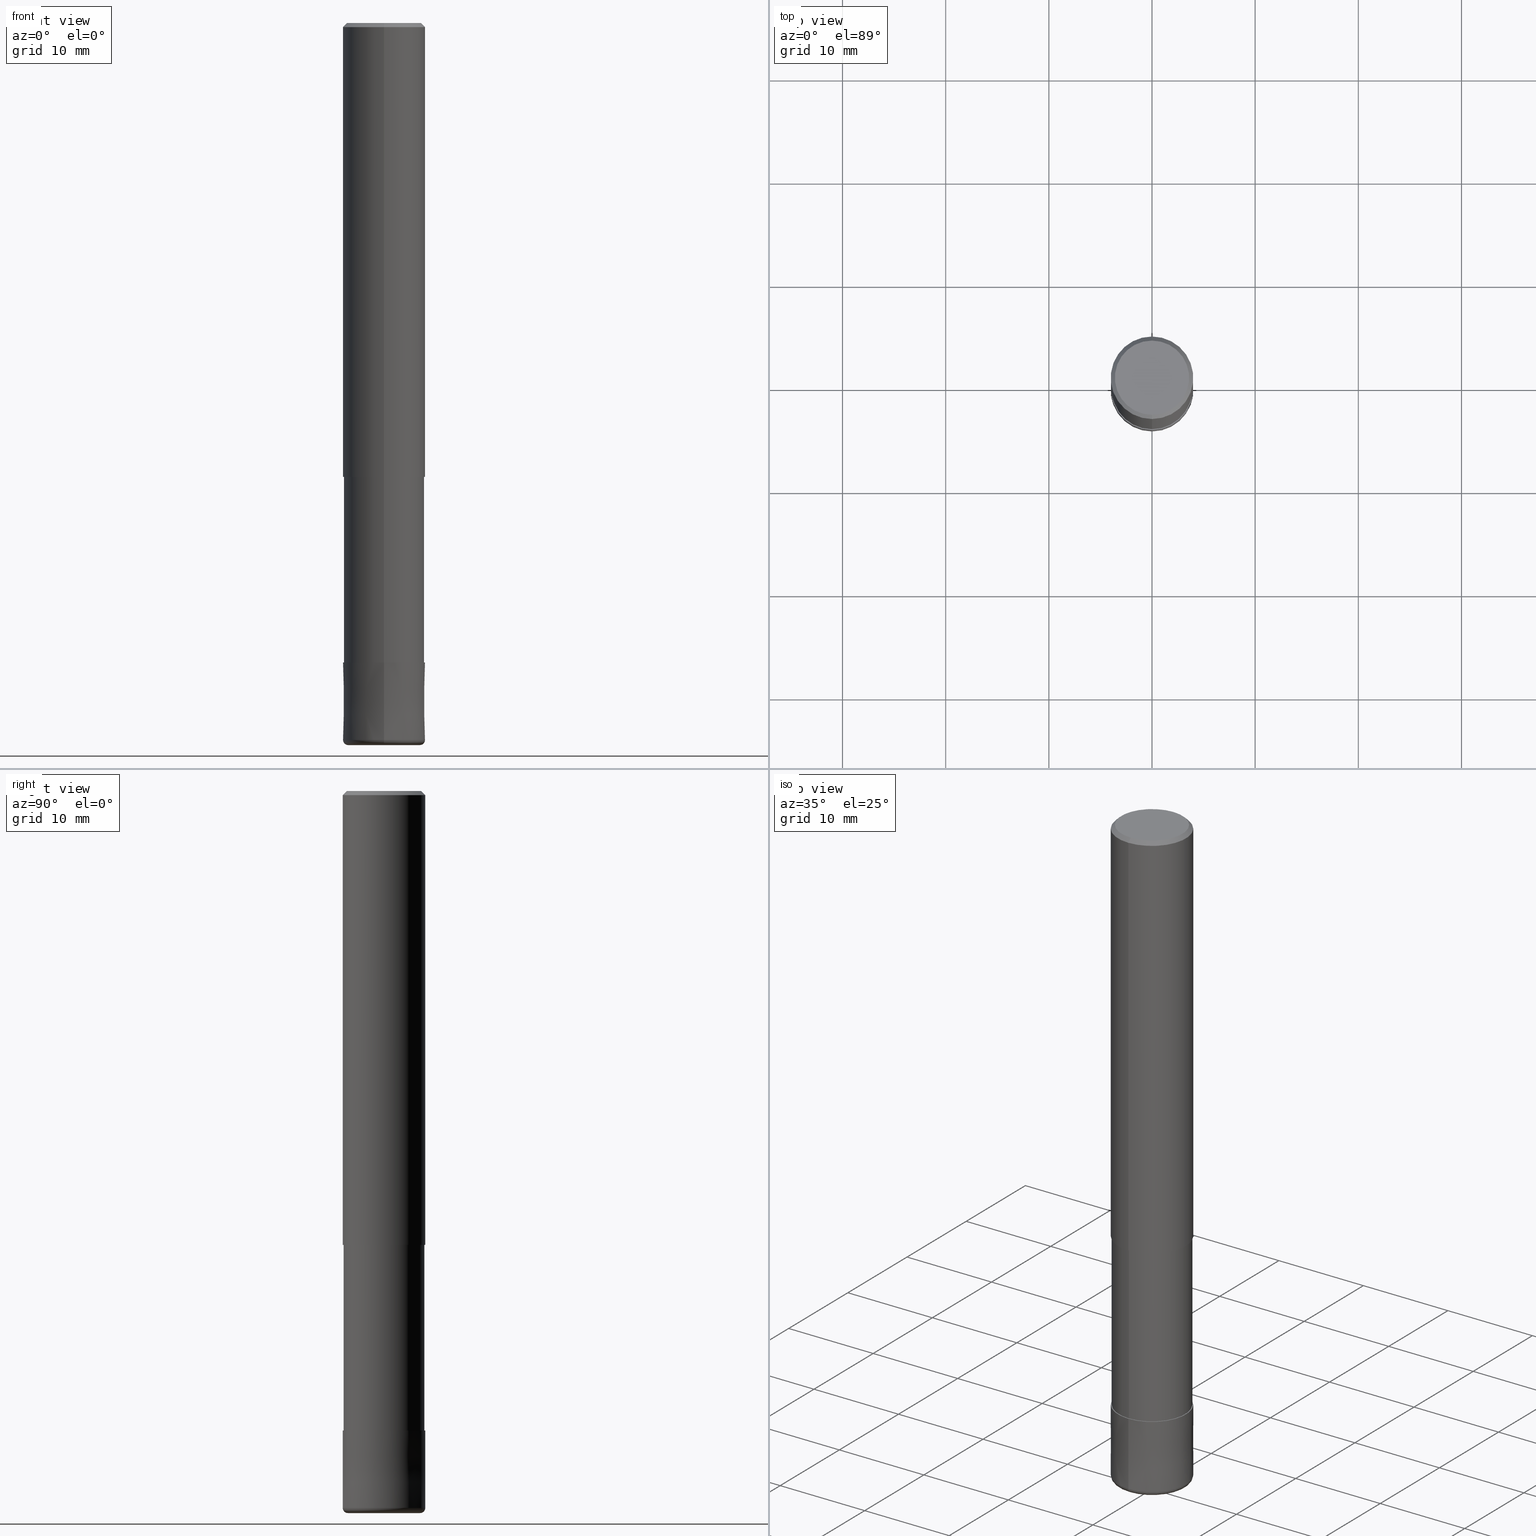
[diagram: canonical four-view strip — front | top / right | iso, engineering-drawing reading convention]
A machine part, canonical four-view strip (front | top / right | iso — engineering-drawing reading convention). The complete STEP part file that produces these views, byte-faithful:
ISO-10303-21;
HEADER;
FILE_DESCRIPTION(('no description'),'unknown implementation level');
FILE_NAME('CRRS4080-05-26-Huellk.stp','  ',('CIMSOURCE GmbH'),('CADClick - KiM GmbH - www.kimweb.de'),'unknown preprocess','ACIS','unknown authorization');
FILE_SCHEMA(('automotive_design'));
ENDSEC;
DATA;
#1=MECHANICAL_DESIGN_GEOMETRIC_PRESENTATION_REPRESENTATION(' ',(#14,#15,#16,#17,#18,#19,#20,#21,#22,#23,#24,#25,#26,#27,#28,#29,#30,#31,#32,#33,#34,#35,#36,#37,#38,#39,#40,#41,#42,#43,#44,#45,#46,#47,#48,#49,#50,#51,#52,#53,#54,#55,#56,#57,#58,#59,#60,#61,#62,#63,#64,#65,#66,#67,#68,#69,#70,#71,#72),#10);
#2=PRODUCT_DEFINITION_CONTEXT('',#73,'design');
#3=APPLICATION_PROTOCOL_DEFINITION('INTERNATIONAL STANDARD','automotive_design',1994,#73);
#4=PRODUCT_CATEGORY_RELATIONSHIP('NONE','NONE',#74,#75);
#5=SHAPE_DEFINITION_REPRESENTATION(#76,#77);
#6=PRODUCT_DEFINITION_CONTEXT('',#78,'design');
#7=APPLICATION_PROTOCOL_DEFINITION('INTERNATIONAL STANDARD','automotive_design',1994,#78);
#8=PRODUCT_CATEGORY_RELATIONSHIP('NONE','NONE',#79,#80);
#9=SHAPE_DEFINITION_REPRESENTATION(#81,#82);
#10= (GEOMETRIC_REPRESENTATION_CONTEXT(3)GLOBAL_UNCERTAINTY_ASSIGNED_CONTEXT((#85))GLOBAL_UNIT_ASSIGNED_CONTEXT((#87,#88,#89))REPRESENTATION_CONTEXT('NONE','WORKSPACE'));
#14=STYLED_ITEM('',(#91),#92);
#15=STYLED_ITEM('',(#93),#94);
#16=STYLED_ITEM('',(#95),#96);
#17=STYLED_ITEM('',(#97),#98);
#18=STYLED_ITEM('',(#99),#100);
#19=STYLED_ITEM('',(#101),#102);
#20=STYLED_ITEM('',(#103),#104);
#21=STYLED_ITEM('',(#105),#106);
#22=STYLED_ITEM('',(#107),#108);
#23=STYLED_ITEM('',(#109),#110);
#24=STYLED_ITEM('',(#111),#112);
#25=STYLED_ITEM('',(#113),#114);
#26=STYLED_ITEM('',(#115),#116);
#27=STYLED_ITEM('',(#117),#118);
#28=STYLED_ITEM('',(#119),#120);
#29=STYLED_ITEM('',(#121),#122);
#30=STYLED_ITEM('',(#123),#124);
#31=STYLED_ITEM('',(#125),#126);
#32=STYLED_ITEM('',(#127),#128);
#33=STYLED_ITEM('',(#129),#130);
#34=STYLED_ITEM('',(#131),#132);
#35=STYLED_ITEM('',(#133),#134);
#36=STYLED_ITEM('',(#135),#136);
#37=STYLED_ITEM('',(#137),#138);
#38=STYLED_ITEM('',(#139),#140);
#39=STYLED_ITEM('',(#141),#142);
#40=STYLED_ITEM('',(#143),#144);
#41=STYLED_ITEM('',(#145),#146);
#42=STYLED_ITEM('',(#147),#148);
#43=STYLED_ITEM('',(#149),#150);
#44=STYLED_ITEM('',(#151),#152);
#45=STYLED_ITEM('',(#153),#154);
#46=STYLED_ITEM('',(#155),#156);
#47=STYLED_ITEM('',(#157),#158);
#48=STYLED_ITEM('',(#159),#160);
#49=STYLED_ITEM('',(#161),#162);
#50=STYLED_ITEM('',(#163),#164);
#51=STYLED_ITEM('',(#165),#166);
#52=STYLED_ITEM('',(#167),#168);
#53=STYLED_ITEM('',(#169),#170);
#54=STYLED_ITEM('',(#171),#172);
#55=STYLED_ITEM('',(#173),#174);
#56=STYLED_ITEM('',(#175),#176);
#57=STYLED_ITEM('',(#177),#178);
#58=STYLED_ITEM('',(#179),#180);
#59=STYLED_ITEM('',(#181),#182);
#60=STYLED_ITEM('',(#183),#184);
#61=STYLED_ITEM('',(#185),#186);
#62=STYLED_ITEM('',(#187),#188);
#63=STYLED_ITEM('',(#189),#190);
#64=STYLED_ITEM('',(#191),#192);
#65=STYLED_ITEM('',(#193),#194);
#66=STYLED_ITEM('',(#195),#196);
#67=STYLED_ITEM('',(#197),#198);
#68=STYLED_ITEM('',(#199),#200);
#69=STYLED_ITEM('',(#201),#202);
#70=STYLED_ITEM('',(#203),#204);
#71=STYLED_ITEM('',(#205),#206);
#72=STYLED_ITEM('',(#207),#208);
#73=APPLICATION_CONTEXT(' ');
#74=PRODUCT_CATEGORY('part','NONE');
#75=PRODUCT_RELATED_PRODUCT_CATEGORY('detail',' ',(#209));
#76=PRODUCT_DEFINITION_SHAPE('NONE','NONE',#210);
#77=ADVANCED_BREP_SHAPE_REPRESENTATION('1',(#102,#211),#10);
#78=APPLICATION_CONTEXT(' ');
#79=PRODUCT_CATEGORY('part','NONE');
#80=PRODUCT_RELATED_PRODUCT_CATEGORY('detail',' ',(#212));
#81=PRODUCT_DEFINITION_SHAPE('NONE','NONE',#213);
#82=ADVANCED_BREP_SHAPE_REPRESENTATION('2',(#164,#214),#10);
#85=UNCERTAINTY_MEASURE_WITH_UNIT(LENGTH_MEASURE(1.0E-006),#87,'','');
#87= (CONVERSION_BASED_UNIT('MILLIMETRE',#217)LENGTH_UNIT()NAMED_UNIT(#220));
#88= (NAMED_UNIT(#222)PLANE_ANGLE_UNIT()SI_UNIT($,.RADIAN.));
#89= (NAMED_UNIT(#222)SOLID_ANGLE_UNIT()SI_UNIT($,.STERADIAN.));
#91=PRESENTATION_STYLE_ASSIGNMENT((#228));
#92=VERTEX_POINT('',#229);
#93=PRESENTATION_STYLE_ASSIGNMENT((#230));
#94=ADVANCED_FACE('',(#231),#232,.T.);
#95=PRESENTATION_STYLE_ASSIGNMENT((#233));
#96=ADVANCED_FACE('',(#234),#235,.T.);
#97=PRESENTATION_STYLE_ASSIGNMENT((#236));
#98=EDGE_CURVE('',#122,#190,#237,.T.);
#99=PRESENTATION_STYLE_ASSIGNMENT((#238));
#100=EDGE_CURVE('',#110,#194,#239,.T.);
#101=PRESENTATION_STYLE_ASSIGNMENT((#240));
#102=MANIFOLD_SOLID_BREP('1',#241);
#103=PRESENTATION_STYLE_ASSIGNMENT((#242));
#104=EDGE_CURVE('',#116,#190,#243,.T.);
#105=PRESENTATION_STYLE_ASSIGNMENT((#244));
#106=EDGE_CURVE('',#112,#132,#245,.T.);
#107=PRESENTATION_STYLE_ASSIGNMENT((#246));
#108=VERTEX_POINT('',#247);
#109=PRESENTATION_STYLE_ASSIGNMENT((#248));
#110=VERTEX_POINT('',#249);
#111=PRESENTATION_STYLE_ASSIGNMENT((#250));
#112=VERTEX_POINT('',#251);
#113=PRESENTATION_STYLE_ASSIGNMENT((#252));
#114=EDGE_CURVE('',#108,#176,#253,.T.);
#115=PRESENTATION_STYLE_ASSIGNMENT((#254));
#116=VERTEX_POINT('',#255);
#117=PRESENTATION_STYLE_ASSIGNMENT((#256));
#118=EDGE_CURVE('',#168,#148,#257,.T.);
#119=PRESENTATION_STYLE_ASSIGNMENT((#258));
#120=EDGE_CURVE('',#138,#110,#259,.T.);
#121=PRESENTATION_STYLE_ASSIGNMENT((#260));
#122=VERTEX_POINT('',#261);
#123=PRESENTATION_STYLE_ASSIGNMENT((#262));
#124=EDGE_CURVE('',#108,#166,#263,.T.);
#125=PRESENTATION_STYLE_ASSIGNMENT((#264));
#126=ADVANCED_FACE('',(#265),#266,.T.);
#127=PRESENTATION_STYLE_ASSIGNMENT((#267));
#128=ADVANCED_FACE('',(#268),#269,.T.);
#129=PRESENTATION_STYLE_ASSIGNMENT((#270));
#130=EDGE_CURVE('',#192,#176,#271,.T.);
#131=PRESENTATION_STYLE_ASSIGNMENT((#272));
#132=VERTEX_POINT('',#273);
#133=PRESENTATION_STYLE_ASSIGNMENT((#274));
#134=ADVANCED_FACE('',(#275),#276,.T.);
#135=PRESENTATION_STYLE_ASSIGNMENT((#277));
#136=ADVANCED_FACE('',(#278),#279,.T.);
#137=PRESENTATION_STYLE_ASSIGNMENT((#280));
#138=VERTEX_POINT('',#281);
#139=PRESENTATION_STYLE_ASSIGNMENT((#282));
#140=EDGE_CURVE('',#176,#108,#283,.T.);
#141=PRESENTATION_STYLE_ASSIGNMENT((#284));
#142=ADVANCED_FACE('',(#285),#286,.T.);
#143=PRESENTATION_STYLE_ASSIGNMENT((#287));
#144=EDGE_CURVE('',#204,#122,#288,.T.);
#145=PRESENTATION_STYLE_ASSIGNMENT((#289));
#146=ADVANCED_FACE('',(#290),#291,.T.);
#147=PRESENTATION_STYLE_ASSIGNMENT((#292));
#148=VERTEX_POINT('',#293);
#149=PRESENTATION_STYLE_ASSIGNMENT((#294));
#150=ADVANCED_FACE('',(#295),#296,.T.);
#151=PRESENTATION_STYLE_ASSIGNMENT((#297));
#152=EDGE_CURVE('',#122,#204,#298,.T.);
#153=PRESENTATION_STYLE_ASSIGNMENT((#299));
#154=ADVANCED_FACE('',(#300),#301,.T.);
#155=PRESENTATION_STYLE_ASSIGNMENT((#302));
#156=EDGE_CURVE('',#116,#204,#303,.T.);
#157=PRESENTATION_STYLE_ASSIGNMENT((#304));
#158=EDGE_CURVE('',#132,#112,#305,.T.);
#159=PRESENTATION_STYLE_ASSIGNMENT((#306));
#160=EDGE_CURVE('',#148,#192,#307,.T.);
#161=PRESENTATION_STYLE_ASSIGNMENT((#308));
#162=EDGE_CURVE('',#194,#110,#309,.T.);
#163=PRESENTATION_STYLE_ASSIGNMENT((#310));
#164=MANIFOLD_SOLID_BREP('2',#311);
#165=PRESENTATION_STYLE_ASSIGNMENT((#312));
#166=VERTEX_POINT('',#313);
#167=PRESENTATION_STYLE_ASSIGNMENT((#314));
#168=VERTEX_POINT('',#315);
#169=PRESENTATION_STYLE_ASSIGNMENT((#316));
#170=EDGE_CURVE('',#138,#92,#317,.T.);
#171=PRESENTATION_STYLE_ASSIGNMENT((#318));
#172=ADVANCED_FACE('',(#319),#320,.T.);
#173=PRESENTATION_STYLE_ASSIGNMENT((#321));
#174=ADVANCED_FACE('',(#322,#323),#324,.T.);
#175=PRESENTATION_STYLE_ASSIGNMENT((#325));
#176=VERTEX_POINT('',#326);
#177=PRESENTATION_STYLE_ASSIGNMENT((#327));
#178=EDGE_CURVE('',#138,#112,#328,.T.);
#179=PRESENTATION_STYLE_ASSIGNMENT((#329));
#180=EDGE_CURVE('',#166,#168,#330,.T.);
#181=PRESENTATION_STYLE_ASSIGNMENT((#331));
#182=EDGE_CURVE('',#190,#116,#332,.T.);
#183=PRESENTATION_STYLE_ASSIGNMENT((#333));
#184=ADVANCED_FACE('',(#334),#335,.T.);
#185=PRESENTATION_STYLE_ASSIGNMENT((#336));
#186=EDGE_CURVE('',#194,#92,#337,.T.);
#187=PRESENTATION_STYLE_ASSIGNMENT((#338));
#188=EDGE_CURVE('',#132,#92,#339,.T.);
#189=PRESENTATION_STYLE_ASSIGNMENT((#340));
#190=VERTEX_POINT('',#341);
#191=PRESENTATION_STYLE_ASSIGNMENT((#342));
#192=VERTEX_POINT('',#343);
#193=PRESENTATION_STYLE_ASSIGNMENT((#344));
#194=VERTEX_POINT('',#345);
#195=PRESENTATION_STYLE_ASSIGNMENT((#346));
#196=EDGE_CURVE('',#192,#166,#347,.T.);
#197=PRESENTATION_STYLE_ASSIGNMENT((#348));
#198=ADVANCED_FACE('',(#349),#350,.T.);
#199=PRESENTATION_STYLE_ASSIGNMENT((#351));
#200=ADVANCED_FACE('',(#352),#353,.T.);
#201=PRESENTATION_STYLE_ASSIGNMENT((#354));
#202=EDGE_CURVE('',#92,#138,#355,.T.);
#203=PRESENTATION_STYLE_ASSIGNMENT((#356));
#204=VERTEX_POINT('',#357);
#205=PRESENTATION_STYLE_ASSIGNMENT((#358));
#206=EDGE_CURVE('',#148,#168,#359,.T.);
#207=PRESENTATION_STYLE_ASSIGNMENT((#360));
#208=EDGE_CURVE('',#166,#192,#361,.T.);
#209=PRODUCT('1','1','PART-1-DESC',(#362));
#210=PRODUCT_DEFINITION('NONE','NONE',#363,#2);
#211=AXIS2_PLACEMENT_3D('',#364,#365,#366);
#212=PRODUCT('2','2','PART-2-DESC',(#367));
#213=PRODUCT_DEFINITION('NONE','NONE',#368,#6);
#214=AXIS2_PLACEMENT_3D('',#369,#370,#371);
#217=LENGTH_MEASURE_WITH_UNIT(LENGTH_MEASURE(1.0),#372);
#220=DIMENSIONAL_EXPONENTS(1.0,0.0,0.0,0.0,0.0,0.0,0.0);
#222=DIMENSIONAL_EXPONENTS(0.0,0.0,0.0,0.0,0.0,0.0,0.0);
#228=POINT_STYLE(' ',#373,POSITIVE_LENGTH_MEASURE(1.0E-006),#374);
#229=CARTESIAN_POINT('',(0.0,4.0,-69.5));
#230=SURFACE_STYLE_USAGE(.BOTH.,#375);
#231=FACE_OUTER_BOUND('',#376,.T.);
#232=CYLINDRICAL_SURFACE('',#377,4.0);
#233=SURFACE_STYLE_USAGE(.BOTH.,#378);
#234=FACE_OUTER_BOUND('',#379,.T.);
#235=CONICAL_SURFACE('',#380,3.8,0.78539816339745);
#236=CURVE_STYLE('',#381,POSITIVE_LENGTH_MEASURE(1.0E-006),#382);
#237=LINE('',#383,#384);
#238=CURVE_STYLE('',#385,POSITIVE_LENGTH_MEASURE(1.0E-006),#386);
#239=CIRCLE('',#387,3.9999);
#240=SURFACE_STYLE_USAGE(.BOTH.,#388);
#241=CLOSED_SHELL('',(#172,#94,#142,#174,#200,#96,#154,#184,#126));
#242=CURVE_STYLE('',#389,POSITIVE_LENGTH_MEASURE(1.0E-006),#390);
#243=CIRCLE('',#391,3.90995);
#244=CURVE_STYLE('',#392,POSITIVE_LENGTH_MEASURE(1.0E-006),#393);
#245=CIRCLE('',#394,3.5);
#246=POINT_STYLE(' ',#395,POSITIVE_LENGTH_MEASURE(1.0E-006),#396);
#247=CARTESIAN_POINT('',(4.89842541528951E-016,-4.0,-44.0));
#248=POINT_STYLE(' ',#397,POSITIVE_LENGTH_MEASURE(1.0E-006),#398);
#249=CARTESIAN_POINT('',(4.89830295465413E-016,-3.9999,-62.0));
#250=POINT_STYLE(' ',#399,POSITIVE_LENGTH_MEASURE(1.0E-006),#400);
#251=CARTESIAN_POINT('',(4.28612223837832E-016,-3.5,-70.0));
#252=CURVE_STYLE('',#401,POSITIVE_LENGTH_MEASURE(1.0E-006),#402);
#253=CIRCLE('',#403,4.0);
#254=POINT_STYLE(' ',#404,POSITIVE_LENGTH_MEASURE(1.0E-006),#405);
#255=CARTESIAN_POINT('',(0.0,3.90995,-44.0));
#256=CURVE_STYLE('',#406,POSITIVE_LENGTH_MEASURE(1.0E-006),#407);
#257=CIRCLE('',#408,3.6);
#258=CURVE_STYLE('',#409,POSITIVE_LENGTH_MEASURE(1.0E-006),#410);
#259=LINE('',#411,#412);
#260=POINT_STYLE(' ',#413,POSITIVE_LENGTH_MEASURE(1.0E-006),#414);
#261=CARTESIAN_POINT('',(4.7881496131278E-016,-3.90995,-62.0));
#262=CURVE_STYLE('',#415,POSITIVE_LENGTH_MEASURE(1.0E-006),#416);
#263=LINE('',#417,#418);
#264=SURFACE_STYLE_USAGE(.BOTH.,#419);
#265=FACE_OUTER_BOUND('',#420,.T.);
#266=PLANE('',#421);
#267=SURFACE_STYLE_USAGE(.BOTH.,#422);
#268=FACE_OUTER_BOUND('',#423,.T.);
#269=CONICAL_SURFACE('',#424,3.99995,1.33333333325713E-005);
#270=CURVE_STYLE('',#425,POSITIVE_LENGTH_MEASURE(1.0E-006),#426);
#271=LINE('',#427,#428);
#272=POINT_STYLE(' ',#429,POSITIVE_LENGTH_MEASURE(1.0E-006),#430);
#273=CARTESIAN_POINT('',(0.0,3.5,-70.0));
#274=SURFACE_STYLE_USAGE(.BOTH.,#431);
#275=FACE_OUTER_BOUND('',#432,.T.);
#276=PLANE('',#433);
#277=SURFACE_STYLE_USAGE(.BOTH.,#434);
#278=FACE_OUTER_BOUND('',#435,.T.);
#279=CONICAL_SURFACE('',#436,3.99995,1.33333333325713E-005);
#280=POINT_STYLE(' ',#437,POSITIVE_LENGTH_MEASURE(1.0E-006),#438);
#281=CARTESIAN_POINT('',(4.89842541528951E-016,-4.0,-69.5));
#282=CURVE_STYLE('',#439,POSITIVE_LENGTH_MEASURE(1.0E-006),#440);
#283=CIRCLE('',#441,4.0);
#284=SURFACE_STYLE_USAGE(.BOTH.,#442);
#285=FACE_OUTER_BOUND('',#443,.T.);
#286=CONICAL_SURFACE('',#444,3.8,0.78539816339745);
#287=CURVE_STYLE('',#445,POSITIVE_LENGTH_MEASURE(1.0E-006),#446);
#288=CIRCLE('',#447,3.90995);
#289=SURFACE_STYLE_USAGE(.BOTH.,#448);
#290=FACE_OUTER_BOUND('',#449,.T.);
#291=TOROIDAL_SURFACE('',#450,3.5,0.500000000000001);
#292=POINT_STYLE(' ',#451,POSITIVE_LENGTH_MEASURE(1.0E-006),#452);
#293=CARTESIAN_POINT('',(0.0,3.6,0.0));
#294=SURFACE_STYLE_USAGE(.BOTH.,#453);
#295=FACE_OUTER_BOUND('',#454,.T.);
#296=PLANE('',#455);
#297=CURVE_STYLE('',#456,POSITIVE_LENGTH_MEASURE(1.0E-006),#457);
#298=CIRCLE('',#458,3.90995);
#299=SURFACE_STYLE_USAGE(.BOTH.,#459);
#300=FACE_OUTER_BOUND('',#460,.T.);
#301=CYLINDRICAL_SURFACE('',#461,4.0);
#302=CURVE_STYLE('',#462,POSITIVE_LENGTH_MEASURE(1.0E-006),#463);
#303=LINE('',#464,#465);
#304=CURVE_STYLE('',#466,POSITIVE_LENGTH_MEASURE(1.0E-006),#467);
#305=CIRCLE('',#468,3.5);
#306=CURVE_STYLE('',#469,POSITIVE_LENGTH_MEASURE(1.0E-006),#470);
#307=LINE('',#471,#472);
#308=CURVE_STYLE('',#473,POSITIVE_LENGTH_MEASURE(1.0E-006),#474);
#309=CIRCLE('',#475,3.9999);
#310=SURFACE_STYLE_USAGE(.BOTH.,#476);
#311=CLOSED_SHELL('',(#198,#128,#150,#136,#146,#134));
#312=POINT_STYLE(' ',#477,POSITIVE_LENGTH_MEASURE(1.0E-006),#478);
#313=CARTESIAN_POINT('',(4.89842541528951E-016,-4.0,-0.399999999999999));
#314=POINT_STYLE(' ',#479,POSITIVE_LENGTH_MEASURE(1.0E-006),#480);
#315=CARTESIAN_POINT('',(4.40858287376056E-016,-3.6,0.0));
#316=CURVE_STYLE('',#481,POSITIVE_LENGTH_MEASURE(1.0E-006),#482);
#317=CIRCLE('',#483,4.0);
#318=SURFACE_STYLE_USAGE(.BOTH.,#484);
#319=FACE_OUTER_BOUND('',#485,.T.);
#320=CYLINDRICAL_SURFACE('',#486,3.90995);
#321=SURFACE_STYLE_USAGE(.BOTH.,#487);
#322=FACE_OUTER_BOUND('',#488,.T.);
#323=FACE_BOUND('',#489,.T.);
#324=PLANE('',#490);
#325=POINT_STYLE(' ',#491,POSITIVE_LENGTH_MEASURE(1.0E-006),#492);
#326=CARTESIAN_POINT('',(0.0,4.0,-44.0));
#327=CURVE_STYLE('',#493,POSITIVE_LENGTH_MEASURE(1.0E-006),#494);
#328=CIRCLE('',#495,0.500000000000001);
#329=CURVE_STYLE('',#496,POSITIVE_LENGTH_MEASURE(1.0E-006),#497);
#330=LINE('',#498,#499);
#331=CURVE_STYLE('',#500,POSITIVE_LENGTH_MEASURE(1.0E-006),#501);
#332=CIRCLE('',#502,3.90995);
#333=SURFACE_STYLE_USAGE(.BOTH.,#503);
#334=FACE_OUTER_BOUND('',#504,.T.);
#335=CYLINDRICAL_SURFACE('',#505,3.90995);
#336=CURVE_STYLE('',#506,POSITIVE_LENGTH_MEASURE(1.0E-006),#507);
#337=LINE('',#508,#509);
#338=CURVE_STYLE('',#510,POSITIVE_LENGTH_MEASURE(1.0E-006),#511);
#339=CIRCLE('',#512,0.500000000000001);
#340=POINT_STYLE(' ',#513,POSITIVE_LENGTH_MEASURE(1.0E-006),#514);
#341=CARTESIAN_POINT('',(4.7881496131278E-016,-3.90995,-44.0));
#342=POINT_STYLE(' ',#515,POSITIVE_LENGTH_MEASURE(1.0E-006),#516);
#343=CARTESIAN_POINT('',(0.0,4.0,-0.399999999999999));
#344=POINT_STYLE(' ',#517,POSITIVE_LENGTH_MEASURE(1.0E-006),#518);
#345=CARTESIAN_POINT('',(0.0,3.9999,-62.0));
#346=CURVE_STYLE('',#519,POSITIVE_LENGTH_MEASURE(1.0E-006),#520);
#347=CIRCLE('',#521,4.0);
#348=SURFACE_STYLE_USAGE(.BOTH.,#522);
#349=FACE_OUTER_BOUND('',#523,.T.);
#350=TOROIDAL_SURFACE('',#524,3.5,0.500000000000001);
#351=SURFACE_STYLE_USAGE(.BOTH.,#525);
#352=FACE_OUTER_BOUND('',#526,.T.);
#353=PLANE('',#527);
#354=CURVE_STYLE('',#528,POSITIVE_LENGTH_MEASURE(1.0E-006),#529);
#355=CIRCLE('',#530,4.0);
#356=POINT_STYLE(' ',#531,POSITIVE_LENGTH_MEASURE(1.0E-006),#532);
#357=CARTESIAN_POINT('',(0.0,3.90995,-62.0));
#358=CURVE_STYLE('',#533,POSITIVE_LENGTH_MEASURE(1.0E-006),#534);
#359=CIRCLE('',#535,3.6);
#360=CURVE_STYLE('',#536,POSITIVE_LENGTH_MEASURE(1.0E-006),#537);
#361=CIRCLE('',#538,4.0);
#362=PRODUCT_CONTEXT('',#73,'mechanical');
#363=PRODUCT_DEFINITION_FORMATION_WITH_SPECIFIED_SOURCE(' ','NONE',#209,.NOT_KNOWN.);
#364=CARTESIAN_POINT('',(0.0,0.0,0.0));
#365=DIRECTION('',(0.0,0.0,1.0));
#366=DIRECTION('',(1.0,0.0,0.0));
#367=PRODUCT_CONTEXT('',#78,'mechanical');
#368=PRODUCT_DEFINITION_FORMATION_WITH_SPECIFIED_SOURCE(' ','NONE',#212,.NOT_KNOWN.);
#369=CARTESIAN_POINT('',(0.0,0.0,0.0));
#370=DIRECTION('',(0.0,0.0,1.0));
#371=DIRECTION('',(1.0,0.0,0.0));
#372= (NAMED_UNIT(#220)LENGTH_UNIT()SI_UNIT(.MILLI.,.METRE.));
#373=PRE_DEFINED_MARKER('');
#374=COLOUR_RGB('',0.800000011920929,0.800000011920929,0.800000011920929);
#375=SURFACE_SIDE_STYLE('',(#540));
#376=EDGE_LOOP('',(#541,#542,#543,#544));
#377=AXIS2_PLACEMENT_3D('',#545,#546,#547);
#378=SURFACE_SIDE_STYLE('',(#548));
#379=EDGE_LOOP('',(#549,#550,#551,#552));
#380=AXIS2_PLACEMENT_3D('',#553,#554,#555);
#381=DRAUGHTING_PRE_DEFINED_CURVE_FONT('continuous');
#382=COLOUR_RGB('',0.498039215803146,0.498039215803146,0.498039215803146);
#383=CARTESIAN_POINT('',(4.7881496131278E-016,-3.90995,-53.0));
#384=VECTOR('',#556,1.0);
#385=DRAUGHTING_PRE_DEFINED_CURVE_FONT('continuous');
#386=COLOUR_RGB('',0.800000011920929,0.800000011920929,0.800000011920929);
#387=AXIS2_PLACEMENT_3D('',#557,#558,#559);
#388=SURFACE_SIDE_STYLE('',(#560));
#389=DRAUGHTING_PRE_DEFINED_CURVE_FONT('continuous');
#390=COLOUR_RGB('',0.498039215803146,0.498039215803146,0.498039215803146);
#391=AXIS2_PLACEMENT_3D('',#561,#562,#563);
#392=DRAUGHTING_PRE_DEFINED_CURVE_FONT('continuous');
#393=COLOUR_RGB('',0.800000011920929,0.800000011920929,0.800000011920929);
#394=AXIS2_PLACEMENT_3D('',#564,#565,#566);
#395=PRE_DEFINED_MARKER('');
#396=COLOUR_RGB('',0.498039215803146,0.498039215803146,0.498039215803146);
#397=PRE_DEFINED_MARKER('');
#398=COLOUR_RGB('',0.800000011920929,0.800000011920929,0.800000011920929);
#399=PRE_DEFINED_MARKER('');
#400=COLOUR_RGB('',0.800000011920929,0.800000011920929,0.800000011920929);
#401=DRAUGHTING_PRE_DEFINED_CURVE_FONT('continuous');
#402=COLOUR_RGB('',0.498039215803146,0.498039215803146,0.498039215803146);
#403=AXIS2_PLACEMENT_3D('',#567,#568,#569);
#404=PRE_DEFINED_MARKER('');
#405=COLOUR_RGB('',0.498039215803146,0.498039215803146,0.498039215803146);
#406=DRAUGHTING_PRE_DEFINED_CURVE_FONT('continuous');
#407=COLOUR_RGB('',0.498039215803146,0.498039215803146,0.498039215803146);
#408=AXIS2_PLACEMENT_3D('',#570,#571,#572);
#409=DRAUGHTING_PRE_DEFINED_CURVE_FONT('continuous');
#410=COLOUR_RGB('',0.800000011920929,0.800000011920929,0.800000011920929);
#411=CARTESIAN_POINT('',(4.89836418497182E-016,-3.99995,-65.75));
#412=VECTOR('',#573,1.0);
#413=PRE_DEFINED_MARKER('');
#414=COLOUR_RGB('',0.498039215803146,0.498039215803146,0.498039215803146);
#415=DRAUGHTING_PRE_DEFINED_CURVE_FONT('continuous');
#416=COLOUR_RGB('',0.498039215803146,0.498039215803146,0.498039215803146);
#417=CARTESIAN_POINT('',(4.89842541528951E-016,-4.0,-22.2));
#418=VECTOR('',#574,1.0);
#419=SURFACE_SIDE_STYLE('',(#575));
#420=EDGE_LOOP('',(#576,#577));
#421=AXIS2_PLACEMENT_3D('',#578,#579,#580);
#422=SURFACE_SIDE_STYLE('',(#581));
#423=EDGE_LOOP('',(#582,#583,#584,#585));
#424=AXIS2_PLACEMENT_3D('',#586,#587,#588);
#425=DRAUGHTING_PRE_DEFINED_CURVE_FONT('continuous');
#426=COLOUR_RGB('',0.498039215803146,0.498039215803146,0.498039215803146);
#427=CARTESIAN_POINT('',(-4.89842541528951E-016,4.0,-22.2));
#428=VECTOR('',#589,1.0);
#429=PRE_DEFINED_MARKER('');
#430=COLOUR_RGB('',0.800000011920929,0.800000011920929,0.800000011920929);
#431=SURFACE_SIDE_STYLE('',(#590));
#432=EDGE_LOOP('',(#591,#592));
#433=AXIS2_PLACEMENT_3D('',#593,#594,#595);
#434=SURFACE_SIDE_STYLE('',(#596));
#435=EDGE_LOOP('',(#597,#598,#599,#600));
#436=AXIS2_PLACEMENT_3D('',#601,#602,#603);
#437=PRE_DEFINED_MARKER('');
#438=COLOUR_RGB('',0.800000011920929,0.800000011920929,0.800000011920929);
#439=DRAUGHTING_PRE_DEFINED_CURVE_FONT('continuous');
#440=COLOUR_RGB('',0.498039215803146,0.498039215803146,0.498039215803146);
#441=AXIS2_PLACEMENT_3D('',#604,#605,#606);
#442=SURFACE_SIDE_STYLE('',(#607));
#443=EDGE_LOOP('',(#608,#609,#610,#611));
#444=AXIS2_PLACEMENT_3D('',#612,#613,#614);
#445=DRAUGHTING_PRE_DEFINED_CURVE_FONT('continuous');
#446=COLOUR_RGB('',0.498039215803146,0.498039215803146,0.498039215803146);
#447=AXIS2_PLACEMENT_3D('',#615,#616,#617);
#448=SURFACE_SIDE_STYLE('',(#618));
#449=EDGE_LOOP('',(#619,#620,#621,#622));
#450=AXIS2_PLACEMENT_3D('',#623,#624,#625);
#451=PRE_DEFINED_MARKER('');
#452=COLOUR_RGB('',0.498039215803146,0.498039215803146,0.498039215803146);
#453=SURFACE_SIDE_STYLE('',(#626));
#454=EDGE_LOOP('',(#627,#628));
#455=AXIS2_PLACEMENT_3D('',#629,#630,#631);
#456=DRAUGHTING_PRE_DEFINED_CURVE_FONT('continuous');
#457=COLOUR_RGB('',0.498039215803146,0.498039215803146,0.498039215803146);
#458=AXIS2_PLACEMENT_3D('',#632,#633,#634);
#459=SURFACE_SIDE_STYLE('',(#635));
#460=EDGE_LOOP('',(#636,#637,#638,#639));
#461=AXIS2_PLACEMENT_3D('',#640,#641,#642);
#462=DRAUGHTING_PRE_DEFINED_CURVE_FONT('continuous');
#463=COLOUR_RGB('',0.498039215803146,0.498039215803146,0.498039215803146);
#464=CARTESIAN_POINT('',(-4.7881496131278E-016,3.90995,-53.0));
#465=VECTOR('',#643,1.0);
#466=DRAUGHTING_PRE_DEFINED_CURVE_FONT('continuous');
#467=COLOUR_RGB('',0.800000011920929,0.800000011920929,0.800000011920929);
#468=AXIS2_PLACEMENT_3D('',#644,#645,#646);
#469=DRAUGHTING_PRE_DEFINED_CURVE_FONT('continuous');
#470=COLOUR_RGB('',0.498039215803146,0.498039215803146,0.498039215803146);
#471=CARTESIAN_POINT('',(-4.65350414452503E-016,3.8,-0.200000000000003));
#472=VECTOR('',#647,1.0);
#473=DRAUGHTING_PRE_DEFINED_CURVE_FONT('continuous');
#474=COLOUR_RGB('',0.800000011920929,0.800000011920929,0.800000011920929);
#475=AXIS2_PLACEMENT_3D('',#648,#649,#650);
#476=SURFACE_SIDE_STYLE('',(#651));
#477=PRE_DEFINED_MARKER('');
#478=COLOUR_RGB('',0.498039215803146,0.498039215803146,0.498039215803146);
#479=PRE_DEFINED_MARKER('');
#480=COLOUR_RGB('',0.498039215803146,0.498039215803146,0.498039215803146);
#481=DRAUGHTING_PRE_DEFINED_CURVE_FONT('continuous');
#482=COLOUR_RGB('',0.800000011920929,0.800000011920929,0.800000011920929);
#483=AXIS2_PLACEMENT_3D('',#652,#653,#654);
#484=SURFACE_SIDE_STYLE('',(#655));
#485=EDGE_LOOP('',(#656,#657,#658,#659));
#486=AXIS2_PLACEMENT_3D('',#660,#661,#662);
#487=SURFACE_SIDE_STYLE('',(#663));
#488=EDGE_LOOP('',(#664,#665));
#489=EDGE_LOOP('',(#666,#667));
#490=AXIS2_PLACEMENT_3D('',#668,#669,#670);
#491=PRE_DEFINED_MARKER('');
#492=COLOUR_RGB('',0.498039215803146,0.498039215803146,0.498039215803146);
#493=DRAUGHTING_PRE_DEFINED_CURVE_FONT('continuous');
#494=COLOUR_RGB('',0.800000011920929,0.800000011920929,0.800000011920929);
#495=AXIS2_PLACEMENT_3D('',#671,#672,#673);
#496=DRAUGHTING_PRE_DEFINED_CURVE_FONT('continuous');
#497=COLOUR_RGB('',0.498039215803146,0.498039215803146,0.498039215803146);
#498=CARTESIAN_POINT('',(4.65350414452503E-016,-3.8,-0.200000000000003));
#499=VECTOR('',#674,1.0);
#500=DRAUGHTING_PRE_DEFINED_CURVE_FONT('continuous');
#501=COLOUR_RGB('',0.498039215803146,0.498039215803146,0.498039215803146);
#502=AXIS2_PLACEMENT_3D('',#675,#676,#677);
#503=SURFACE_SIDE_STYLE('',(#678));
#504=EDGE_LOOP('',(#679,#680,#681,#682));
#505=AXIS2_PLACEMENT_3D('',#683,#684,#685);
#506=DRAUGHTING_PRE_DEFINED_CURVE_FONT('continuous');
#507=COLOUR_RGB('',0.800000011920929,0.800000011920929,0.800000011920929);
#508=CARTESIAN_POINT('',(-4.89836418497182E-016,3.99995,-65.75));
#509=VECTOR('',#686,1.0);
#510=DRAUGHTING_PRE_DEFINED_CURVE_FONT('continuous');
#511=COLOUR_RGB('',0.800000011920929,0.800000011920929,0.800000011920929);
#512=AXIS2_PLACEMENT_3D('',#687,#688,#689);
#513=PRE_DEFINED_MARKER('');
#514=COLOUR_RGB('',0.498039215803146,0.498039215803146,0.498039215803146);
#515=PRE_DEFINED_MARKER('');
#516=COLOUR_RGB('',0.498039215803146,0.498039215803146,0.498039215803146);
#517=PRE_DEFINED_MARKER('');
#518=COLOUR_RGB('',0.800000011920929,0.800000011920929,0.800000011920929);
#519=DRAUGHTING_PRE_DEFINED_CURVE_FONT('continuous');
#520=COLOUR_RGB('',0.498039215803146,0.498039215803146,0.498039215803146);
#521=AXIS2_PLACEMENT_3D('',#690,#691,#692);
#522=SURFACE_SIDE_STYLE('',(#693));
#523=EDGE_LOOP('',(#694,#695,#696,#697));
#524=AXIS2_PLACEMENT_3D('',#698,#699,#700);
#525=SURFACE_SIDE_STYLE('',(#701));
#526=EDGE_LOOP('',(#702,#703));
#527=AXIS2_PLACEMENT_3D('',#704,#705,#706);
#528=DRAUGHTING_PRE_DEFINED_CURVE_FONT('continuous');
#529=COLOUR_RGB('',0.800000011920929,0.800000011920929,0.800000011920929);
#530=AXIS2_PLACEMENT_3D('',#707,#708,#709);
#531=PRE_DEFINED_MARKER('');
#532=COLOUR_RGB('',0.498039215803146,0.498039215803146,0.498039215803146);
#533=DRAUGHTING_PRE_DEFINED_CURVE_FONT('continuous');
#534=COLOUR_RGB('',0.498039215803146,0.498039215803146,0.498039215803146);
#535=AXIS2_PLACEMENT_3D('',#710,#711,#712);
#536=DRAUGHTING_PRE_DEFINED_CURVE_FONT('continuous');
#537=COLOUR_RGB('',0.498039215803146,0.498039215803146,0.498039215803146);
#538=AXIS2_PLACEMENT_3D('',#713,#714,#715);
#540=SURFACE_STYLE_FILL_AREA(#716);
#541=ORIENTED_EDGE('',*,*,#130,.F.);
#542=ORIENTED_EDGE('',*,*,#196,.T.);
#543=ORIENTED_EDGE('',*,*,#124,.F.);
#544=ORIENTED_EDGE('',*,*,#140,.F.);
#545=CARTESIAN_POINT('',(0.0,0.0,-22.2));
#546=DIRECTION('',(-0.0,-0.0,1.0));
#547=DIRECTION('',(0.0,1.0,0.0));
#548=SURFACE_STYLE_FILL_AREA(#717);
#549=ORIENTED_EDGE('',*,*,#160,.T.);
#550=ORIENTED_EDGE('',*,*,#208,.F.);
#551=ORIENTED_EDGE('',*,*,#180,.T.);
#552=ORIENTED_EDGE('',*,*,#118,.T.);
#553=CARTESIAN_POINT('',(0.0,0.0,-0.200000000000003));
#554=DIRECTION('',(0.0,-0.0,-1.0));
#555=DIRECTION('',(0.0,1.0,0.0));
#556=DIRECTION('',(-0.0,-0.0,1.0));
#557=CARTESIAN_POINT('',(0.0,0.0,-62.0));
#558=DIRECTION('',(0.0,0.0,-1.0));
#559=DIRECTION('',(0.0,1.0,0.0));
#560=SURFACE_STYLE_FILL_AREA(#718);
#561=CARTESIAN_POINT('',(0.0,0.0,-44.0));
#562=DIRECTION('',(0.0,0.0,-1.0));
#563=DIRECTION('',(0.0,1.0,0.0));
#564=CARTESIAN_POINT('',(0.0,0.0,-70.0));
#565=DIRECTION('',(0.0,0.0,-1.0));
#566=DIRECTION('',(0.0,1.0,0.0));
#567=CARTESIAN_POINT('',(0.0,0.0,-44.0));
#568=DIRECTION('',(0.0,0.0,-1.0));
#569=DIRECTION('',(0.0,1.0,0.0));
#570=CARTESIAN_POINT('',(0.0,0.0,0.0));
#571=DIRECTION('',(0.0,0.0,-1.0));
#572=DIRECTION('',(0.0,1.0,0.0));
#573=DIRECTION('',(-1.63280847162148E-021,1.33333333321763E-005,0.999999999911111));
#574=DIRECTION('',(-0.0,-0.0,1.0));
#575=SURFACE_STYLE_FILL_AREA(#719);
#576=ORIENTED_EDGE('',*,*,#144,.T.);
#577=ORIENTED_EDGE('',*,*,#152,.T.);
#578=CARTESIAN_POINT('',(0.0,1.954975,-62.0));
#579=DIRECTION('',(0.0,0.0,-1.0));
#580=DIRECTION('',(0.0,1.0,0.0));
#581=SURFACE_STYLE_FILL_AREA(#720);
#582=ORIENTED_EDGE('',*,*,#186,.F.);
#583=ORIENTED_EDGE('',*,*,#162,.T.);
#584=ORIENTED_EDGE('',*,*,#120,.F.);
#585=ORIENTED_EDGE('',*,*,#202,.F.);
#586=CARTESIAN_POINT('',(0.0,0.0,-65.75));
#587=DIRECTION('',(0.0,-0.0,-1.0));
#588=DIRECTION('',(0.0,1.0,0.0));
#589=DIRECTION('',(0.0,0.0,-1.0));
#590=SURFACE_STYLE_FILL_AREA(#721);
#591=ORIENTED_EDGE('',*,*,#158,.T.);
#592=ORIENTED_EDGE('',*,*,#106,.T.);
#593=CARTESIAN_POINT('',(0.0,1.75,-70.0));
#594=DIRECTION('',(0.0,0.0,-1.0));
#595=DIRECTION('',(0.0,1.0,0.0));
#596=SURFACE_STYLE_FILL_AREA(#722);
#597=ORIENTED_EDGE('',*,*,#186,.T.);
#598=ORIENTED_EDGE('',*,*,#170,.F.);
#599=ORIENTED_EDGE('',*,*,#120,.T.);
#600=ORIENTED_EDGE('',*,*,#100,.T.);
#601=CARTESIAN_POINT('',(0.0,0.0,-65.75));
#602=DIRECTION('',(0.0,-0.0,-1.0));
#603=DIRECTION('',(0.0,1.0,0.0));
#604=CARTESIAN_POINT('',(0.0,0.0,-44.0));
#605=DIRECTION('',(0.0,0.0,-1.0));
#606=DIRECTION('',(0.0,1.0,0.0));
#607=SURFACE_STYLE_FILL_AREA(#723);
#608=ORIENTED_EDGE('',*,*,#160,.F.);
#609=ORIENTED_EDGE('',*,*,#206,.T.);
#610=ORIENTED_EDGE('',*,*,#180,.F.);
#611=ORIENTED_EDGE('',*,*,#196,.F.);
#612=CARTESIAN_POINT('',(0.0,0.0,-0.200000000000003));
#613=DIRECTION('',(0.0,-0.0,-1.0));
#614=DIRECTION('',(0.0,1.0,0.0));
#615=CARTESIAN_POINT('',(0.0,0.0,-62.0));
#616=DIRECTION('',(0.0,0.0,-1.0));
#617=DIRECTION('',(0.0,1.0,0.0));
#618=SURFACE_STYLE_FILL_AREA(#724);
#619=ORIENTED_EDGE('',*,*,#178,.T.);
#620=ORIENTED_EDGE('',*,*,#158,.F.);
#621=ORIENTED_EDGE('',*,*,#188,.T.);
#622=ORIENTED_EDGE('',*,*,#202,.T.);
#623=CARTESIAN_POINT('',(0.0,0.0,-69.5));
#624=DIRECTION('',(0.0,0.0,-1.0));
#625=DIRECTION('',(0.0,-1.0,0.0));
#626=SURFACE_STYLE_FILL_AREA(#725);
#627=ORIENTED_EDGE('',*,*,#162,.F.);
#628=ORIENTED_EDGE('',*,*,#100,.F.);
#629=CARTESIAN_POINT('',(0.0,1.99995,-62.0));
#630=DIRECTION('',(-0.0,0.0,1.0));
#631=DIRECTION('',(0.0,-1.0,0.0));
#632=CARTESIAN_POINT('',(0.0,0.0,-62.0));
#633=DIRECTION('',(0.0,0.0,-1.0));
#634=DIRECTION('',(0.0,1.0,0.0));
#635=SURFACE_STYLE_FILL_AREA(#726);
#636=ORIENTED_EDGE('',*,*,#130,.T.);
#637=ORIENTED_EDGE('',*,*,#114,.F.);
#638=ORIENTED_EDGE('',*,*,#124,.T.);
#639=ORIENTED_EDGE('',*,*,#208,.T.);
#640=CARTESIAN_POINT('',(0.0,0.0,-22.2));
#641=DIRECTION('',(-0.0,-0.0,1.0));
#642=DIRECTION('',(0.0,1.0,0.0));
#643=DIRECTION('',(0.0,0.0,-1.0));
#644=CARTESIAN_POINT('',(0.0,0.0,-70.0));
#645=DIRECTION('',(0.0,0.0,-1.0));
#646=DIRECTION('',(0.0,1.0,0.0));
#647=DIRECTION('',(-8.65927457071937E-017,0.707106781186549,-0.707106781186546));
#648=CARTESIAN_POINT('',(0.0,0.0,-62.0));
#649=DIRECTION('',(0.0,0.0,-1.0));
#650=DIRECTION('',(0.0,1.0,0.0));
#651=SURFACE_STYLE_FILL_AREA(#727);
#652=CARTESIAN_POINT('',(0.0,0.0,-69.5));
#653=DIRECTION('',(0.0,0.0,-1.0));
#654=DIRECTION('',(0.0,1.0,0.0));
#655=SURFACE_STYLE_FILL_AREA(#728);
#656=ORIENTED_EDGE('',*,*,#156,.F.);
#657=ORIENTED_EDGE('',*,*,#104,.T.);
#658=ORIENTED_EDGE('',*,*,#98,.F.);
#659=ORIENTED_EDGE('',*,*,#144,.F.);
#660=CARTESIAN_POINT('',(0.0,0.0,-53.0));
#661=DIRECTION('',(-0.0,-0.0,1.0));
#662=DIRECTION('',(0.0,1.0,0.0));
#663=SURFACE_STYLE_FILL_AREA(#729);
#664=ORIENTED_EDGE('',*,*,#140,.T.);
#665=ORIENTED_EDGE('',*,*,#114,.T.);
#666=ORIENTED_EDGE('',*,*,#104,.F.);
#667=ORIENTED_EDGE('',*,*,#182,.F.);
#668=CARTESIAN_POINT('',(0.0,2.0,-44.0));
#669=DIRECTION('',(0.0,0.0,-1.0));
#670=DIRECTION('',(0.0,1.0,0.0));
#671=CARTESIAN_POINT('',(4.28612223837832E-016,-3.5,-69.5));
#672=DIRECTION('',(1.0,1.22460635382238E-016,0.0));
#673=DIRECTION('',(1.22460635382238E-016,-1.0,-0.0));
#674=DIRECTION('',(-8.65927457071937E-017,0.707106781186549,0.707106781186546));
#675=CARTESIAN_POINT('',(0.0,0.0,-44.0));
#676=DIRECTION('',(0.0,0.0,-1.0));
#677=DIRECTION('',(0.0,1.0,0.0));
#678=SURFACE_STYLE_FILL_AREA(#730);
#679=ORIENTED_EDGE('',*,*,#156,.T.);
#680=ORIENTED_EDGE('',*,*,#152,.F.);
#681=ORIENTED_EDGE('',*,*,#98,.T.);
#682=ORIENTED_EDGE('',*,*,#182,.T.);
#683=CARTESIAN_POINT('',(0.0,0.0,-53.0));
#684=DIRECTION('',(-0.0,-0.0,1.0));
#685=DIRECTION('',(0.0,1.0,0.0));
#686=DIRECTION('',(-1.63280847162148E-021,1.33333333321763E-005,-0.999999999911111));
#687=CARTESIAN_POINT('',(-4.28612223837832E-016,3.5,-69.5));
#688=DIRECTION('',(1.0,1.22460635382238E-016,0.0));
#689=DIRECTION('',(-1.22460635382238E-016,1.0,0.0));
#690=CARTESIAN_POINT('',(0.0,0.0,-0.399999999999999));
#691=DIRECTION('',(0.0,0.0,-1.0));
#692=DIRECTION('',(0.0,1.0,0.0));
#693=SURFACE_STYLE_FILL_AREA(#731);
#694=ORIENTED_EDGE('',*,*,#178,.F.);
#695=ORIENTED_EDGE('',*,*,#170,.T.);
#696=ORIENTED_EDGE('',*,*,#188,.F.);
#697=ORIENTED_EDGE('',*,*,#106,.F.);
#698=CARTESIAN_POINT('',(0.0,0.0,-69.5));
#699=DIRECTION('',(0.0,0.0,-1.0));
#700=DIRECTION('',(0.0,-1.0,0.0));
#701=SURFACE_STYLE_FILL_AREA(#732);
#702=ORIENTED_EDGE('',*,*,#206,.F.);
#703=ORIENTED_EDGE('',*,*,#118,.F.);
#704=CARTESIAN_POINT('',(0.0,1.8,0.0));
#705=DIRECTION('',(-0.0,0.0,1.0));
#706=DIRECTION('',(0.0,-1.0,0.0));
#707=CARTESIAN_POINT('',(0.0,0.0,-69.5));
#708=DIRECTION('',(0.0,0.0,-1.0));
#709=DIRECTION('',(0.0,1.0,0.0));
#710=CARTESIAN_POINT('',(0.0,0.0,0.0));
#711=DIRECTION('',(0.0,0.0,-1.0));
#712=DIRECTION('',(0.0,1.0,0.0));
#713=CARTESIAN_POINT('',(0.0,0.0,-0.399999999999999));
#714=DIRECTION('',(0.0,0.0,-1.0));
#715=DIRECTION('',(0.0,1.0,0.0));
#716=FILL_AREA_STYLE('',(#733));
#717=FILL_AREA_STYLE('',(#734));
#718=FILL_AREA_STYLE('',(#735));
#719=FILL_AREA_STYLE('',(#736));
#720=FILL_AREA_STYLE('',(#737));
#721=FILL_AREA_STYLE('',(#738));
#722=FILL_AREA_STYLE('',(#739));
#723=FILL_AREA_STYLE('',(#740));
#724=FILL_AREA_STYLE('',(#741));
#725=FILL_AREA_STYLE('',(#742));
#726=FILL_AREA_STYLE('',(#743));
#727=FILL_AREA_STYLE('',(#744));
#728=FILL_AREA_STYLE('',(#745));
#729=FILL_AREA_STYLE('',(#746));
#730=FILL_AREA_STYLE('',(#747));
#731=FILL_AREA_STYLE('',(#748));
#732=FILL_AREA_STYLE('',(#749));
#733=FILL_AREA_STYLE_COLOUR('',#750);
#734=FILL_AREA_STYLE_COLOUR('',#751);
#735=FILL_AREA_STYLE_COLOUR('',#752);
#736=FILL_AREA_STYLE_COLOUR('',#753);
#737=FILL_AREA_STYLE_COLOUR('',#754);
#738=FILL_AREA_STYLE_COLOUR('',#755);
#739=FILL_AREA_STYLE_COLOUR('',#756);
#740=FILL_AREA_STYLE_COLOUR('',#757);
#741=FILL_AREA_STYLE_COLOUR('',#758);
#742=FILL_AREA_STYLE_COLOUR('',#759);
#743=FILL_AREA_STYLE_COLOUR('',#760);
#744=FILL_AREA_STYLE_COLOUR('',#761);
#745=FILL_AREA_STYLE_COLOUR('',#762);
#746=FILL_AREA_STYLE_COLOUR('',#763);
#747=FILL_AREA_STYLE_COLOUR('',#764);
#748=FILL_AREA_STYLE_COLOUR('',#765);
#749=FILL_AREA_STYLE_COLOUR('',#766);
#750=COLOUR_RGB('',0.498039215803146,0.498039215803146,0.498039215803146);
#751=COLOUR_RGB('',0.498039215803146,0.498039215803146,0.498039215803146);
#752=COLOUR_RGB('',0.498039215803146,0.498039215803146,0.498039215803146);
#753=COLOUR_RGB('',0.498039215803146,0.498039215803146,0.498039215803146);
#754=COLOUR_RGB('',0.800000011920929,0.800000011920929,0.800000011920929);
#755=COLOUR_RGB('',0.800000011920929,0.800000011920929,0.800000011920929);
#756=COLOUR_RGB('',0.800000011920929,0.800000011920929,0.800000011920929);
#757=COLOUR_RGB('',0.498039215803146,0.498039215803146,0.498039215803146);
#758=COLOUR_RGB('',0.800000011920929,0.800000011920929,0.800000011920929);
#759=COLOUR_RGB('',0.800000011920929,0.800000011920929,0.800000011920929);
#760=COLOUR_RGB('',0.498039215803146,0.498039215803146,0.498039215803146);
#761=COLOUR_RGB('',0.800000011920929,0.800000011920929,0.800000011920929);
#762=COLOUR_RGB('',0.498039215803146,0.498039215803146,0.498039215803146);
#763=COLOUR_RGB('',0.498039215803146,0.498039215803146,0.498039215803146);
#764=COLOUR_RGB('',0.498039215803146,0.498039215803146,0.498039215803146);
#765=COLOUR_RGB('',0.800000011920929,0.800000011920929,0.800000011920929);
#766=COLOUR_RGB('',0.498039215803146,0.498039215803146,0.498039215803146);
#767=AXIS2_PLACEMENT_3D('PCS',#768,#769,#770);
#768=CARTESIAN_POINT('',(0.0,0.0,0.0));
#769=DIRECTION('',(0.0,0.0,1.0));
#770=DIRECTION('',(1.0,0.0,0.0));
#771=AXIS2_PLACEMENT_3D('CIP',#772,#773,#774);
#772=CARTESIAN_POINT('',(0.0,0.0,-70.0));
#773=DIRECTION('',(0.0,0.0,1.0));
#774=DIRECTION('',(1.0,0.0,0.0));
#775=AXIS2_PLACEMENT_3D('CRP',#776,#777,#778);
#776=CARTESIAN_POINT('',(-4.0,0.0,-70.0));
#777=DIRECTION('',(0.0,0.0,1.0));
#778=DIRECTION('',(1.0,0.0,0.0));
#779=AXIS2_PLACEMENT_3D('MCS',#780,#781,#782);
#780=CARTESIAN_POINT('',(0.0,0.0,-44.0));
#781=DIRECTION('',(0.0,0.0,1.0));
#782=DIRECTION('',(1.0,0.0,0.0));
#783=CONSTRUCTIVE_GEOMETRY_REPRESENTATION_RELATIONSHIP('coordinate systems',$,#77,#784);
#784=CONSTRUCTIVE_GEOMETRY_REPRESENTATION('coordinate systems',(#767,#771,#775,#779),#10);
ENDSEC;
END-ISO-10303-21;
